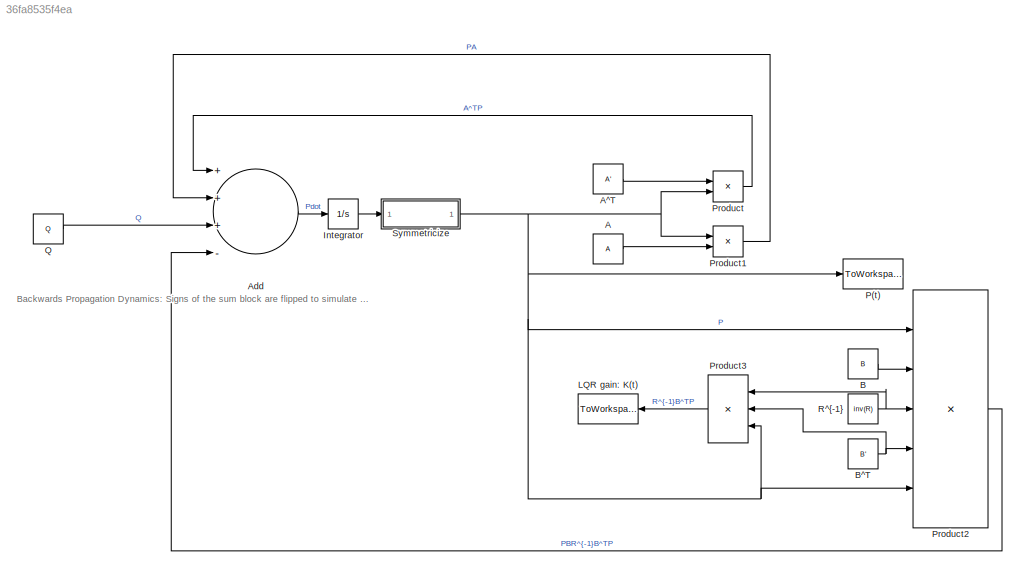
MODEL slx_36fa8535f4ea
KIND model
CONFIG AbsTol = auto
CONFIG EnableMultiTasking = off
CONFIG FixedStep = stepsize
CONFIG MaxStep = auto
CONFIG MinStep = auto
CONFIG RelTol = 1e-3
CONFIG SampleTimeConstraint = Unconstrained
CONFIG Solver = FixedStepAuto
CONFIG SolverName = FixedStepAuto
CONFIG StartTime = 0.0
CONFIG StopTime = T
BLOCK [Constant] A
  Value = A
  VectorParams1D = off
BLOCK [Constant] A^T
  Value = A'
  VectorParams1D = off
BLOCK [Sum] Add
  InputSameDT = off
  Inputs = +++-
  OutDataTypeStr = Inherit: Inherit via internal rule
  Ports = [4, 1]
  SaturateOnIntegerOverflow = off
BLOCK [Constant] B
  Value = B
  VectorParams1D = off
BLOCK [Constant] B^T
  Value = B'
  VectorParams1D = off
BLOCK [Integrator] Integrator
  InitialCondition = M
  Ports = [1, 1]
BLOCK [ToWorkspace] LQR gain: K(t)
  FixptAsFi = on
  MaxDataPoints = inf
  Ports = [1]
  SampleTime = -1
  Save2DSignal = 3-D array (concatenate along third dimension)
  SaveFormat = Timeseries
  VariableName = K_t
BLOCK [ToWorkspace] P(t)
  FixptAsFi = on
  MaxDataPoints = inf
  Ports = [1]
  SampleTime = -1
  Save2DSignal = 3-D array (concatenate along third dimension)
  SaveFormat = Timeseries
  VariableName = P_t
BLOCK [Product] Product
  InputSameDT = off
  Multiplication = Matrix(*)
  OutDataTypeStr = Inherit: Inherit via internal rule
  Ports = [2, 1]
  RndMeth = Floor
  SaturateOnIntegerOverflow = off
BLOCK [Product] Product1
  InputSameDT = off
  Multiplication = Matrix(*)
  OutDataTypeStr = Inherit: Inherit via internal rule
  Ports = [2, 1]
  RndMeth = Floor
  SaturateOnIntegerOverflow = off
BLOCK [Product] Product2
  InputSameDT = off
  Inputs = 5
  Multiplication = Matrix(*)
  OutDataTypeStr = Inherit: Inherit via internal rule
  Ports = [5, 1]
  RndMeth = Floor
  SaturateOnIntegerOverflow = off
BLOCK [Product] Product3
  InputSameDT = off
  Inputs = 3
  Multiplication = Matrix(*)
  OutDataTypeStr = Inherit: Inherit via internal rule
  Ports = [3, 1]
  RndMeth = Floor
  SaturateOnIntegerOverflow = off
BLOCK [Constant] Q
  Value = Q
  VectorParams1D = off
BLOCK [Constant] R^{-1}
  Value = inv(R)
  VectorParams1D = off
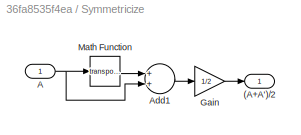
BLOCK [SubSystem] Symmetricize
  Ports = [1, 1]
  RequestExecContextInheritance = off
  Variant = off
BLOCK [Outport] Symmetricize/(A+A')//2
  IconDisplay = Port number
BLOCK [Inport] Symmetricize/A
  IconDisplay = Port number
BLOCK [Sum] Symmetricize/Add1
  InputSameDT = off
  OutDataTypeStr = Inherit: Inherit via internal rule
  Ports = [2, 1]
  SaturateOnIntegerOverflow = off
BLOCK [Gain] Symmetricize/Gain
  Gain = 1/2
  OutDataTypeStr = Inherit: Inherit via internal rule
  ParamDataTypeStr = Inherit: Inherit via internal rule
  SaturateOnIntegerOverflow = off
BLOCK [Math] Symmetricize/Math Function
  Operator = transpose
  Ports = [1, 1]
ANNOTATION (root): Backwards Propagation Dynamics: Signs of the sum block are flipped to simulate Pdot = -PA - A'P + PBinv(R)B'P - Q backwards in time.
LINE A:1 -> Product1:2
LINE A^T:1 -> Product:1
LINE Add:1 -> Integrator:1
LINE B:1 -> Product2:2
NET B^T:1 -> Product2:4, Product3:2
LINE Integrator:1 -> Symmetricize:1
LINE Product1:1 -> Add:2
LINE Product2:1 -> Add:4
LINE Product3:1 -> LQR gain: K(t):1
LINE Product:1 -> Add:1
LINE Q:1 -> Add:3
NET R^{-1}:1 -> Product2:3, Product3:1
NET Symmetricize/A:1 -> Symmetricize/Add1:2, Symmetricize/Math Function:1
LINE Symmetricize/Add1:1 -> Symmetricize/Gain:1
LINE Symmetricize/Gain:1 -> Symmetricize/(A+A')//2:1
LINE Symmetricize/Math Function:1 -> Symmetricize/Add1:1
NET Symmetricize:1 -> P(t):1, Product1:1, Product2:1, Product2:5, Product3:3, Product:2
note: NET lines group one-source signal fan-out (src -> all destinations, sorted); 1:1 wires keep LINE
